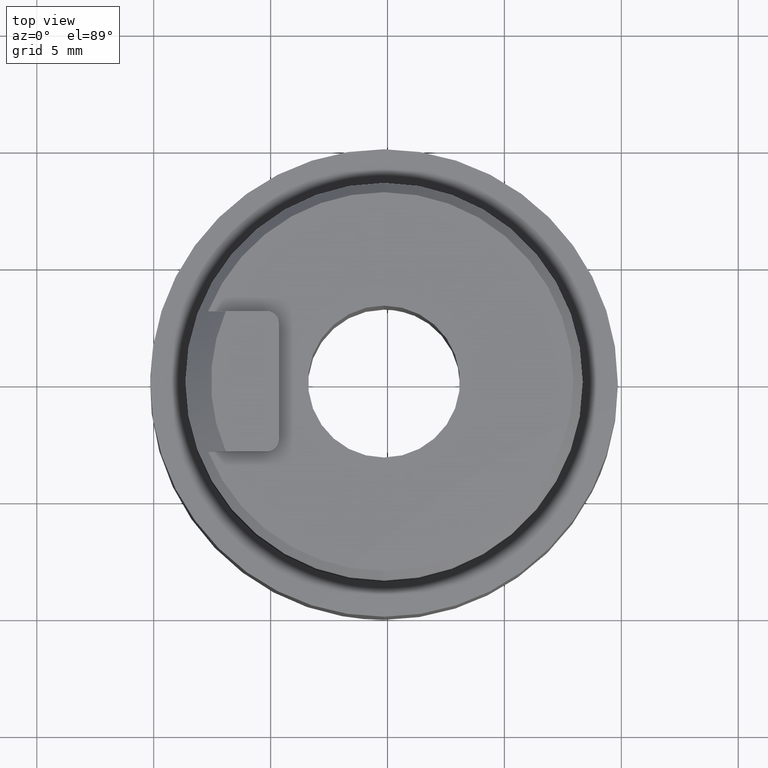
[diagram: clean part render]
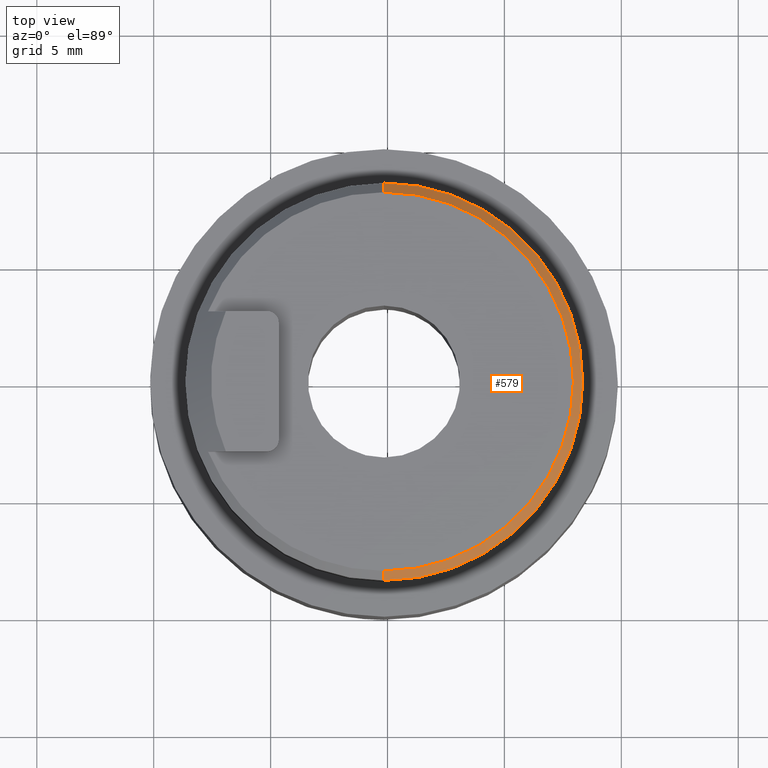
[diagram: same view with one face highlighted and labeled with its STEP entity id]
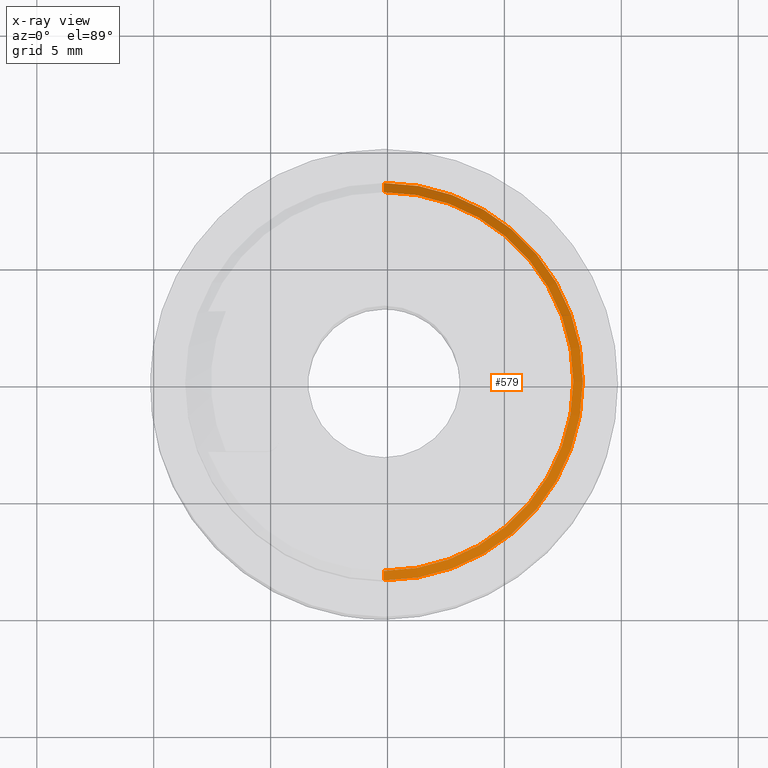
[diagram: x-ray of the same camera — body ghosted, the highlighted face saturated]
A machine part, top view. The second image highlights one B-rep face of the part: STEP entity #579.
The next image is the same camera in x-ray: the body ghosted, the highlighted face saturated — about 0% of this face is hidden behind the body in this view.
In plain terms, the highlighted conical surface has half-angle 45 deg.
Its self-contained STEP definition (entity closure, byte-faithful):
#45 = CARTESIAN_POINT ( 'NONE',  ( 0.3999999999999975800, 0.0000000000000000000, 0.0000000000000000000 ) ) ;
#110 = ORIENTED_EDGE ( 'NONE', *, *, #327, .T. ) ;
#124 = VERTEX_POINT ( 'NONE', #474 ) ;
#147 = CIRCLE ( 'NONE', #917, 8.100000000000033400 ) ;
#164 = ORIENTED_EDGE ( 'NONE', *, *, #1055, .T. ) ;
#174 = CIRCLE ( 'NONE', #517, 8.500000000000030200 ) ;
#253 = VERTEX_POINT ( 'NONE', #348 ) ;
#256 = ORIENTED_EDGE ( 'NONE', *, *, #987, .F. ) ;
#293 = CARTESIAN_POINT ( 'NONE',  ( 0.0000000000000000000, 0.0000000000000000000, 0.0000000000000000000 ) ) ;
#325 = LINE ( 'NONE', #604, #779 ) ;
#327 = EDGE_CURVE ( 'NONE', #253, #124, #325, .T. ) ;
#348 = CARTESIAN_POINT ( 'NONE',  ( 2.236420666301577800E-029, 9.919639073093470500E-016, 8.100000000000033400 ) ) ;
#356 = DIRECTION ( 'NONE',  ( -1.000000000000000000, -1.774937036747276600E-030, 2.761013168273541300E-030 ) ) ;
#359 = LINE ( 'NONE', #874, #521 ) ;
#413 = CARTESIAN_POINT ( 'NONE',  ( 0.3999999999999975800, 1.040949779275328200E-015, -8.500000000000000000 ) ) ;
#451 = VERTEX_POINT ( 'NONE', #413 ) ;
#474 = CARTESIAN_POINT ( 'NONE',  ( 0.3999999999999975800, -1.385754743235226200E-029, 8.500000000000030200 ) ) ;
#487 = CARTESIAN_POINT ( 'NONE',  ( 0.0000000000000000000, 0.0000000000000000000, 0.0000000000000000000 ) ) ;
#491 = VERTEX_POINT ( 'NONE', #977 ) ;
#517 = AXIS2_PLACEMENT_3D ( 'NONE', #45, #356, #663 ) ;
#521 = VECTOR ( 'NONE', #603, 1000.000000000000100 ) ;
#524 = DIRECTION ( 'NONE',  ( 1.000000000000000000, 1.774937036747276600E-030, -2.761013168273541300E-030 ) ) ;
#579 = ADVANCED_FACE ( 'NONE', ( #631 ), #1062, .T. ) ;
#597 = EDGE_CURVE ( 'NONE', #491, #253, #147, .T. ) ;
#603 = DIRECTION ( 'NONE',  ( 0.7071067811865492400, 2.407865986631447400E-030, -0.7071067811865458000 ) ) ;
#604 = CARTESIAN_POINT ( 'NONE',  ( -2.316292832955197700E-029, 9.919639073093470500E-016, 8.100000000000033400 ) ) ;
#617 = AXIS2_PLACEMENT_3D ( 'NONE', #293, #649, #684 ) ;
#631 = FACE_OUTER_BOUND ( 'NONE', #702, .T. ) ;
#649 = DIRECTION ( 'NONE',  ( 1.000000000000000000, 1.774937036747276600E-030, -2.761013168273541300E-030 ) ) ;
#663 = DIRECTION ( 'NONE',  ( 0.0000000000000000000, -1.630299697923789500E-030, 1.000000000000000000 ) ) ;
#684 = DIRECTION ( 'NONE',  ( 2.859620781426157600E-030, 1.630299697923789900E-030, -1.000000000000000000 ) ) ;
#702 = EDGE_LOOP ( 'NONE', ( #738, #110, #164, #256 ) ) ;
#721 = DIRECTION ( 'NONE',  ( 0.7071067811865492400, 8.659560562354921800E-017, 0.7071067811865458000 ) ) ;
#738 = ORIENTED_EDGE ( 'NONE', *, *, #597, .T. ) ;
#779 = VECTOR ( 'NONE', #721, 1000.000000000000100 ) ;
#874 = CARTESIAN_POINT ( 'NONE',  ( 2.316292832955197400E-029, 1.320542755318275200E-029, -8.100000000000033400 ) ) ;
#917 = AXIS2_PLACEMENT_3D ( 'NONE', #487, #524, #1036 ) ;
#977 = CARTESIAN_POINT ( 'NONE',  ( -2.236420666301578100E-029, 1.320542755318275200E-029, -8.100000000000033400 ) ) ;
#987 = EDGE_CURVE ( 'NONE', #491, #451, #359, .T. ) ;
#1036 = DIRECTION ( 'NONE',  ( 2.859620781426157600E-030, 1.630299697923789900E-030, -1.000000000000000000 ) ) ;
#1055 = EDGE_CURVE ( 'NONE', #124, #451, #174, .T. ) ;
#1062 = CONICAL_SURFACE ( 'NONE', #617, 8.100000000000033400, 0.7853981633974439500 ) ;